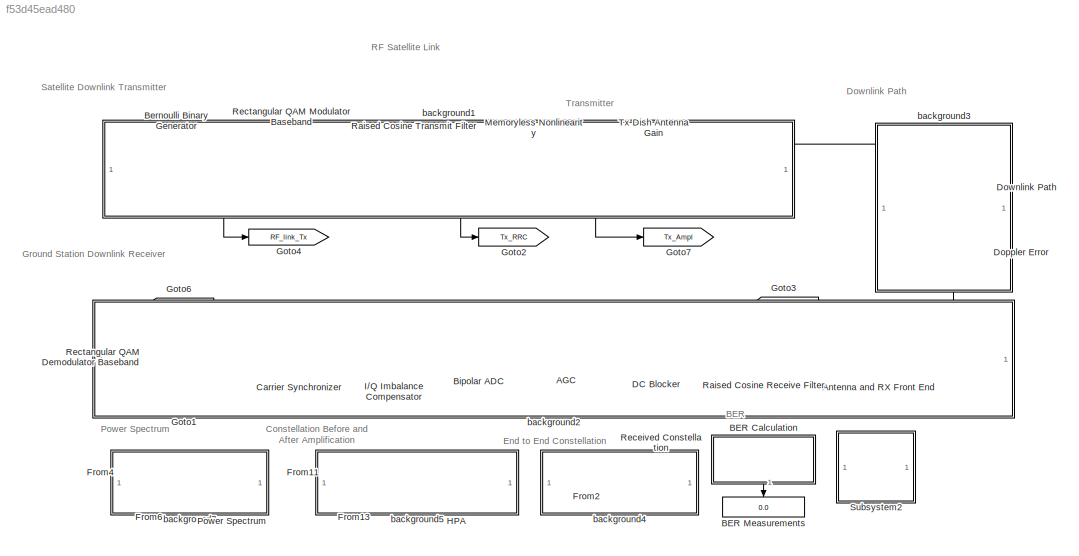
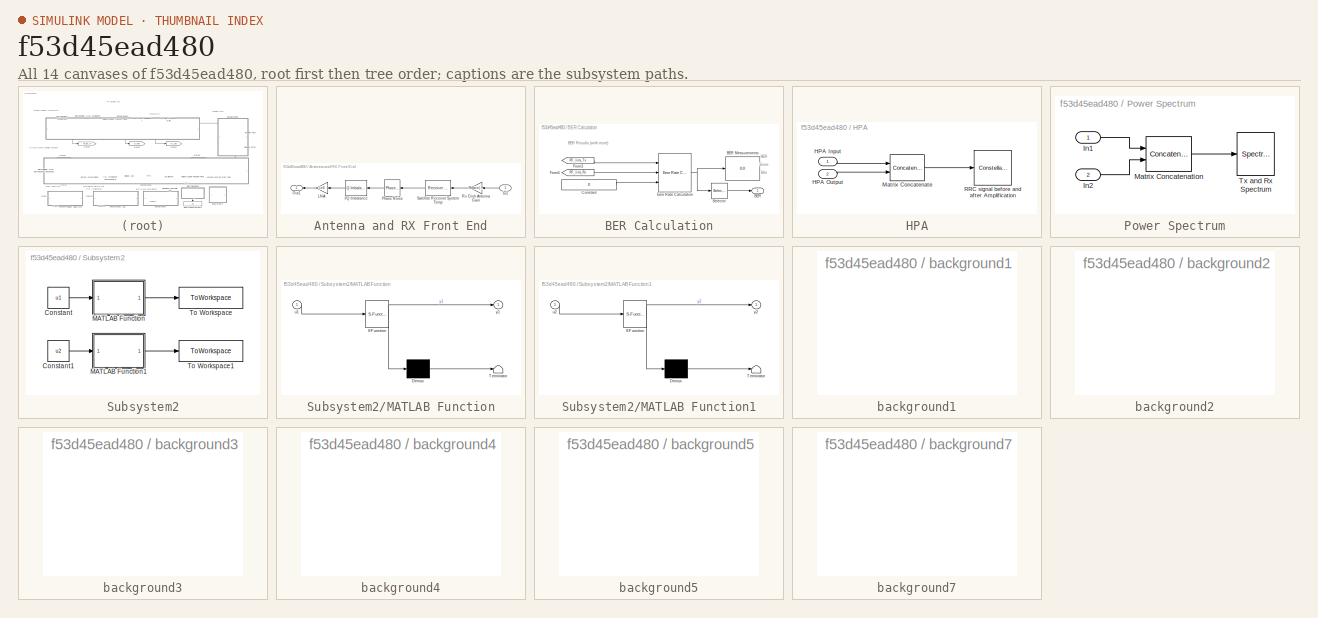
[diagram: thumbnail index - all 14 canvases of the model, root first then tree order]
MODEL slx_f53d45ead480
KIND model
CONFIG AbsTol = auto
CONFIG EnableMultiTasking = on
CONFIG FixedStep = auto
CONFIG MaxStep = auto
CONFIG MinStep = auto
CONFIG RelTol = 1e-3
CONFIG SampleTimeConstraint = Unconstrained
CONFIG SolverName = VariableStepDiscrete
CONFIG StartTime = 0.0
CONFIG StopTime = 20
BLOCK [Reference] AGC  REF=commrfcorlib/AGC
  Ports = [1, 1]
  SourceBlock = commrfcorlib/AGC
  SourceProductName = Communications Toolbox
  SourceType = AGC
BLOCK [SubSystem] Antenna and RX Front End
  Ports = [1, 1]
  RequestExecContextInheritance = off
BLOCK [Reference] Antenna and RX Front End/I//Q Imbalance  REF=commrflib2/I//Q
Imbalance
  NameLocation = top
  Ports = [1, 1]
  SourceBlock = commrflib2/I//Q\nImbalance
  SourceProductName = Communications Toolbox
  SourceType = I/Q Imbalance
BLOCK [Inport] Antenna and RX Front End/In1
  NameLocation = top
BLOCK [Gain] Antenna and RX Front End/LNA
  Gain = 1e6
  NameLocation = top
BLOCK [Outport] Antenna and RX Front End/Out1
  NameLocation = top
  VectorParamsAs1DForOutWhenUnconnected = off
BLOCK [Reference] Antenna and RX Front End/Phase Noise  REF=impairlib/Phase
Noise
  NameLocation = top
  Ports = [1, 1]
  SourceBlock = impairlib/Phase\nNoise
  SourceProductBaseCode = CM,AM,SX
  SourceType = Phase Noise
BLOCK [Gain] Antenna and RX Front End/Rx Dish Antenna Gain
  Gain = RxGain(1,1)
  NameLocation = top
  OutDataTypeStr = Inherit: Same as input
  ParamDataTypeStr = Inherit: Same as input
  SaturateOnIntegerOverflow = on
BLOCK [Reference] Antenna and RX Front End/Satellite Receiver System Temp  REF=commrflib2/Receiver
Thermal Noise
  NameLocation = top
  Ports = [1, 1]
  SourceBlock = commrflib2/Receiver\nThermal Noise
  SourceProductName = Communications Toolbox
  SourceType = Receiver Thermal Noise
BLOCK [SubSystem] BER Calculation
  NameLocation = right
  Ports = [0, 1]
  RequestExecContextInheritance = off
BLOCK [Outport] BER Calculation/BER
  VectorParamsAs1DForOutWhenUnconnected = off
BLOCK [Display] BER Calculation/BER Measurements
  Decimation = 1
  Ports = [1]
BLOCK [Constant] BER Calculation/Constant
  SampleTime = 1e-5* 400
  Value = 0
BLOCK [Reference] BER Calculation/Error Rate Calculation  REF=commsink2/Error Rate
Calculation
  Ports = [3, 1]
  SourceBlock = commsink2/Error Rate\nCalculation
  SourceProductName = Communications Toolbox
  SourceType = Error Rate Calculation
BLOCK [From] BER Calculation/From3
  GotoTag = RF_link_Tx
  TagVisibility = global
BLOCK [From] BER Calculation/From5
  GotoTag = RF_link_Rx
  TagVisibility = global
BLOCK [Selector] BER Calculation/Selector
  IndexOptions = Index vector (dialog)
  Indices = [1]
  InputPortWidth = 3
  OutputSizes = 1
  Ports = [1, 1]
BLOCK [Display] BER Measurements
  Decimation = 1
  Format = short_e
  NameLocation = left
  Ports = [1]
BLOCK [Reference] Bernoulli Binary Generator  REF=commrandsrc3/Bernoulli Binary
Generator
  Ports = [0, 1]
  SourceBlock = commrandsrc3/Bernoulli Binary\nGenerator
  SourceProductName = Communications Toolbox
  SourceType = Bernoulli Binary Generator
BLOCK [Reference] Bipolar ADC  REF=commdemoslib/Bipolar ADC
  Ports = [1, 1]
  SourceBlock = commdemoslib/Bipolar ADC
  SourceProductBaseCode = CM
  SourceType = Analog-to-Digital Converter
BLOCK [Reference] Carrier Synchronizer  REF=commsync2/Carrier Synchronizer
  Ports = [1, 1]
  SourceBlock = commsync2/Carrier Synchronizer
  SourceProductName = Communications Toolbox
  SourceType = Carrier Synchronizer
BLOCK [Reference] DC Blocker  REF=dspsigops/DC Blocker
  Ports = [1, 1]
  SourceBlock = dspsigops/DC Blocker
  SourceProductName = DSP System Toolbox
  SourceType = DCBlocker
BLOCK [Reference] Doppler Error  REF=commrflib2/Phase//
Frequency
Offset
  NameLocation = left
  Ports = [1, 1]
  SourceBlock = commrflib2/Phase//\nFrequency\nOffset
  SourceProductName = Communications Toolbox
  SourceType = Phase/Frequency Offset
BLOCK [Reference] Downlink Path  REF=commrflib2/Free Space
Path Loss
  NameLocation = left
  Ports = [1, 1]
  SourceBlock = commrflib2/Free Space\nPath Loss
  SourceProductName = Communications Toolbox
  SourceType = Free Space Path Loss
BLOCK [From] From11
  GotoTag = Tx_RRC
  TagVisibility = global
BLOCK [From] From13
  GotoTag = Tx_Ampl
  TagVisibility = global
BLOCK [From] From2
  GotoTag = Rx_Const
  TagVisibility = global
BLOCK [From] From4
  GotoTag = Tx_RRC
  TagVisibility = global
BLOCK [From] From6
  GotoTag = Rx_RRC
  TagVisibility = global
BLOCK [Goto] Goto1
  GotoTag = RF_link_Rx
  NameLocation = top
  TagVisibility = global
BLOCK [Goto] Goto2
  GotoTag = Tx_RRC
  NameLocation = top
  TagVisibility = global
BLOCK [Goto] Goto3
  GotoTag = Rx_RRC
  NameLocation = top
  TagVisibility = global
BLOCK [Goto] Goto4
  GotoTag = RF_link_Tx
  NameLocation = top
  TagVisibility = global
BLOCK [Goto] Goto6
  GotoTag = Rx_Const
  TagVisibility = global
BLOCK [Goto] Goto7
  GotoTag = Tx_Ampl
  NameLocation = top
  TagVisibility = global
BLOCK [SubSystem] HPA
  Ports = [2]
  RequestExecContextInheritance = off
  TreatAsAtomicUnit = on
BLOCK [Inport] HPA/HPA Input
BLOCK [Inport] HPA/HPA Output
  Port = 2
BLOCK [Concatenate] HPA/Matrix Concatenate
  ConcatenateDimension = 2
  Mode = Multidimensional array
  Ports = [2, 1]
BLOCK [ConstellationDiagram] HPA/RRC signal before and after Amplification
  Ports = [1]
  ScopeSpecificationString = comm.scopes.ConstellationDiagramBlockCfg('CurrentConfiguration', extmgr.ConfigurationSet(extmgr.Configuration('Core','General UI',true),extmgr.Configuration('Core','Source UI',true),extmgr.Configuration('Sources','WiredSimulink',true),extmgr.Configuration('Sources','SPTool',false),extmgr.Configuration('Sources','File',false),extmgr.Configuration('Sources','Streaming',false),extmgr.Configuration('S...<+1933ch>
BLOCK [Reference] I//Q Imbalance Compensator  REF=commrfcorlib/I//Q Imbalance Compensator
  Ports = [1, 1]
  SourceBlock = commrfcorlib/I//Q Imbalance Compensator
  SourceProductName = Communications Toolbox
  SourceType = I/Q Imbalance Compensator
BLOCK [Reference] Memoryless Nonlinearity  REF=commrflib2/Memoryless
Nonlinearity
  Ports = [1, 1]
  SourceBlock = commrflib2/Memoryless\nNonlinearity
  SourceProductName = Communications Toolbox
  SourceType = Memoryless Nonlinearity
BLOCK [SubSystem] Power Spectrum
  Ports = [2]
  RequestExecContextInheritance = off
  TreatAsAtomicUnit = on
BLOCK [Inport] Power Spectrum/In1
BLOCK [Inport] Power Spectrum/In2
  Port = 2
BLOCK [Concatenate] Power Spectrum/Matrix Concatenation
  ConcatenateDimension = 2
  Mode = Multidimensional array
  Ports = [2, 1]
BLOCK [SpectrumAnalyzer] Power Spectrum/Tx and Rx Spectrum
  Ports = [1]
  ScopeSpecificationString = spbscopes.SpectrumAnalyzerBlockCfg('CurrentConfiguration', extmgr.ConfigurationSet(extmgr.Configuration('Core','General UI',true),extmgr.Configuration('Core','Source UI',true),extmgr.Configuration('Sources','WiredSimulink',true),extmgr.Configuration('Sources','Workspace',false),extmgr.Configuration('Sources','Simulink',false),extmgr.Configuration('Sources','File',false),extmgr.Configuration('Sourc...<+3104ch>
BLOCK [Reference] Raised Cosine Receive Filter  REF=commfilt2/Raised Cosine
Receive Filter
  Ports = [1, 1]
  SourceBlock = commfilt2/Raised Cosine\nReceive Filter
  SourceProductName = Communications Toolbox
  SourceType = Raised Cosine Receive Filter
  UserDataPersistent = on
BLOCK [Reference] Raised Cosine Transmit Filter  REF=commfilt2/Raised Cosine
Transmit Filter
  Ports = [1, 1]
  SourceBlock = commfilt2/Raised Cosine\nTransmit Filter
  SourceProductName = Communications Toolbox
  SourceType = Raised Cosine Transmit Filter
  UserDataPersistent = on
BLOCK [ConstellationDiagram] Received Constellation
  Ports = [1]
  ScopeSpecificationString = comm.scopes.ConstellationDiagramBlockCfg('CurrentConfiguration', extmgr.ConfigurationSet(extmgr.Configuration('Core','General UI',true,'ShowConfiguration',true),extmgr.Configuration('Core','Source UI',true,'ShowPlaybackCmdMode',false),extmgr.Configuration('Sources','WiredSimulink',true),extmgr.Configuration('Sources','Streaming',false),extmgr.Configuration('Sources','SPTool',false),extmgr.Configur...<+2033ch>
  Tag = ScatterPlot
BLOCK [Reference] Rectangular QAM Demodulator Baseband  REF=commdigbbndam3/Rectangular QAM
Demodulator
Baseband
  Ports = [1, 1]
  SourceBlock = commdigbbndam3/Rectangular QAM\nDemodulator\nBaseband
  SourceProductName = Communications Toolbox
  SourceType = Rectangular QAM Demodulator Baseband
BLOCK [Reference] Rectangular QAM Modulator Baseband  REF=commdigbbndam3/Rectangular QAM
Modulator
Baseband
  Ports = [1, 1]
  SourceBlock = commdigbbndam3/Rectangular QAM\nModulator\nBaseband
  SourceProductName = Communications Toolbox
  SourceType = Rectangular QAM Modulator Baseband
BLOCK [SubSystem] Subsystem2
  Ports = []
  RequestExecContextInheritance = off
BLOCK [Constant] Subsystem2/Constant
  Value = u1
  VectorParams1D = off
BLOCK [Constant] Subsystem2/Constant1
  Value = u2
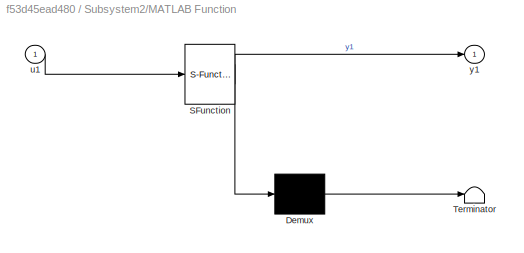
BLOCK [SubSystem] Subsystem2/MATLAB Function
  ErrorFcn = Stateflow.Translate.translate
  PermitHierarchicalResolution = ExplicitOnly
  Ports = [1, 1]
  RequestExecContextInheritance = off
  SFBlockType = MATLAB Function
  TreatAsAtomicUnit = on
BLOCK [Demux] Subsystem2/MATLAB Function/ Demux 
  Outputs = 1
  Ports = [1, 1]
BLOCK [S-Function] Subsystem2/MATLAB Function/ SFunction 
  EnableBusSupport = on
  FunctionName = sf_sfun
  PortCounts = [1 2]
  Ports = [1, 2]
  SFcnIsStateOwnerBlock = off
  SFunctionDeploymentMode = off
  Tag = Stateflow S-Function 1
BLOCK [Terminator] Subsystem2/MATLAB Function/ Terminator 
BLOCK [Inport] Subsystem2/MATLAB Function/u1
BLOCK [Outport] Subsystem2/MATLAB Function/y1
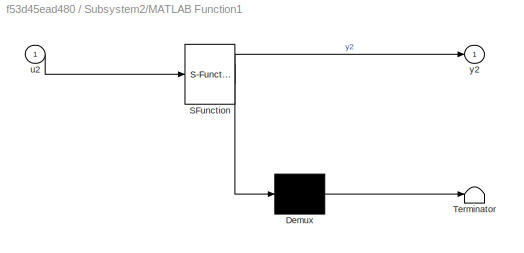
BLOCK [SubSystem] Subsystem2/MATLAB Function1
  ErrorFcn = Stateflow.Translate.translate
  PermitHierarchicalResolution = ExplicitOnly
  Ports = [1, 1]
  RequestExecContextInheritance = off
  SFBlockType = MATLAB Function
  TreatAsAtomicUnit = on
BLOCK [Demux] Subsystem2/MATLAB Function1/ Demux 
  Outputs = 1
  Ports = [1, 1]
BLOCK [S-Function] Subsystem2/MATLAB Function1/ SFunction 
  EnableBusSupport = on
  FunctionName = sf_sfun
  PortCounts = [1 2]
  Ports = [1, 2]
  SFcnIsStateOwnerBlock = off
  SFunctionDeploymentMode = off
  Tag = Stateflow S-Function 2
BLOCK [Terminator] Subsystem2/MATLAB Function1/ Terminator 
BLOCK [Inport] Subsystem2/MATLAB Function1/u2
BLOCK [Outport] Subsystem2/MATLAB Function1/y2
BLOCK [ToWorkspace] Subsystem2/To Workspace
  MaxDataPoints = inf
  Ports = [1]
  SampleTime = -1
  VariableName = TxGain
BLOCK [ToWorkspace] Subsystem2/To Workspace1
  MaxDataPoints = inf
  Ports = [1]
  SampleTime = -1
  VariableName = RxGain
BLOCK [Gain] Tx Dish Antenna Gain
  Gain = TxGain(1,1)
  OutDataTypeStr = Inherit: Same as input
  ParamDataTypeStr = Inherit: Inherit from 'Gain'
  SaturateOnIntegerOverflow = on
BLOCK [SubSystem] background1
  Ports = []
  RequestExecContextInheritance = off
BLOCK [SubSystem] background2
  Ports = []
  RequestExecContextInheritance = off
BLOCK [SubSystem] background3
  Ports = []
  RequestExecContextInheritance = off
BLOCK [SubSystem] background4
  Ports = []
  RequestExecContextInheritance = off
BLOCK [SubSystem] background5
  Ports = []
  RequestExecContextInheritance = off
BLOCK [SubSystem] background7
  Ports = []
  RequestExecContextInheritance = off
ANNOTATION (root): BER
ANNOTATION (root): Constellation Before and After Amplification
ANNOTATION (root): Downlink Path
ANNOTATION (root): End to End Constellation
ANNOTATION (root): Ground Station Downlink Receiver
ANNOTATION (root): Power Spectrum
ANNOTATION (root): RF Satellite Link
ANNOTATION (root): Satellite Downlink Transmitter
ANNOTATION (root): Transmitter
ANNOTATION BER Calculation: BER
ANNOTATION BER Calculation: BER Results (with reset)
ANNOTATION BER Calculation: Bits
ANNOTATION BER Calculation: Errors
LINE AGC:1 -> Bipolar ADC:1
LINE Antenna and RX Front End/I//Q Imbalance:1 -> Antenna and RX Front End/LNA:1
LINE Antenna and RX Front End/In1:1 -> Antenna and RX Front End/Rx Dish Antenna Gain:1
LINE Antenna and RX Front End/LNA:1 -> Antenna and RX Front End/Out1:1
LINE Antenna and RX Front End/Phase Noise:1 -> Antenna and RX Front End/I//Q Imbalance:1
LINE Antenna and RX Front End/Rx Dish Antenna Gain:1 -> Antenna and RX Front End/Satellite Receiver System Temp:1
LINE Antenna and RX Front End/Satellite Receiver System Temp:1 -> Antenna and RX Front End/Phase Noise:1
NET Antenna and RX Front End:1 -> Goto3:1, Raised Cosine Receive Filter:1
LINE BER Calculation/Constant:1 -> BER Calculation/Error Rate Calculation:3
NET BER Calculation/Error Rate Calculation:1 -> BER Calculation/BER Measurements:1, BER Calculation/Selector:1
LINE BER Calculation/From3:1 -> BER Calculation/Error Rate Calculation:1
LINE BER Calculation/From5:1 -> BER Calculation/Error Rate Calculation:2
LINE BER Calculation/Selector:1 -> BER Calculation/BER:1
LINE BER Calculation:1 -> BER Measurements:1
NET Bernoulli Binary Generator:1 -> Goto4:1, Rectangular QAM Modulator Baseband:1
LINE Bipolar ADC:1 -> I//Q Imbalance Compensator:1
NET Carrier Synchronizer:1 -> Goto6:1, Rectangular QAM Demodulator Baseband:1
LINE DC Blocker:1 -> AGC:1
LINE Doppler Error:1 -> Antenna and RX Front End:1
LINE Downlink Path:1 -> Doppler Error:1
LINE From11:1 -> HPA:1
LINE From13:1 -> HPA:2
LINE From2:1 -> Received Constellation:1
LINE From4:1 -> Power Spectrum:1
LINE From6:1 -> Power Spectrum:2
LINE HPA/HPA Input:1 -> HPA/Matrix Concatenate:1
LINE HPA/HPA Output:1 -> HPA/Matrix Concatenate:2
LINE HPA/Matrix Concatenate:1 -> HPA/RRC signal before and after Amplification:1
LINE I//Q Imbalance Compensator:1 -> Carrier Synchronizer:1
NET Memoryless Nonlinearity:1 -> Goto7:1, Tx Dish Antenna Gain:1
LINE Power Spectrum/In1:1 -> Power Spectrum/Matrix Concatenation:1
LINE Power Spectrum/In2:1 -> Power Spectrum/Matrix Concatenation:2
LINE Power Spectrum/Matrix Concatenation:1 -> Power Spectrum/Tx and Rx Spectrum:1
LINE Raised Cosine Receive Filter:1 -> DC Blocker:1
NET Raised Cosine Transmit Filter:1 -> Goto2:1, Memoryless Nonlinearity:1
LINE Rectangular QAM Demodulator Baseband:1 -> Goto1:1
LINE Rectangular QAM Modulator Baseband:1 -> Raised Cosine Transmit Filter:1
LINE Subsystem2/Constant1:1 -> Subsystem2/MATLAB Function1:1
LINE Subsystem2/Constant:1 -> Subsystem2/MATLAB Function:1
LINE Subsystem2/MATLAB Function1:1 -> Subsystem2/To Workspace1:1
LINE Subsystem2/MATLAB Function:1 -> Subsystem2/To Workspace:1
LINE Tx Dish Antenna Gain:1 -> Downlink Path:1
note: NET lines group one-source signal fan-out (src -> all destinations, sorted); 1:1 wires keep LINE
CHART Subsystem2/MATLAB Function1 states=1 transitions=1
  STATE_LABEL 'eML_blk_kernel()'
  STATE_LABEL 'SCRIPT:\nfunction y2 = fcn2(u2)\nneff= 0.55; % middle of the road efficiency\nfrequency = 4000;\nantDiam1 = u2;\ngain = sqrt(neff)*pi*antDiam1*(4000* 1e6)/3e8; % Proakis pp 316\nRXAntGain = gain;\n\ny2 = RXAntGain;\ny2\nend\n'
CHART Subsystem2/MATLAB Function states=1 transitions=1
  STATE_LABEL 'eML_blk_kernel()'
  STATE_LABEL 'SCRIPT:\nfunction y1 = fcn1(u1)\nneff= 0.55; % middle of the road efficiency\nfrequency = 4000;\nantDiam1 = u1;\ngain = sqrt(neff)*pi*antDiam1*(4000* 1e6)/3e8; % Proakis pp 316\nTXAntGain = gain;\n\ny1 = TXAntGain;\ny1\nend\n'
CHART  states=0 transitions=0
CHART  states=0 transitions=0
